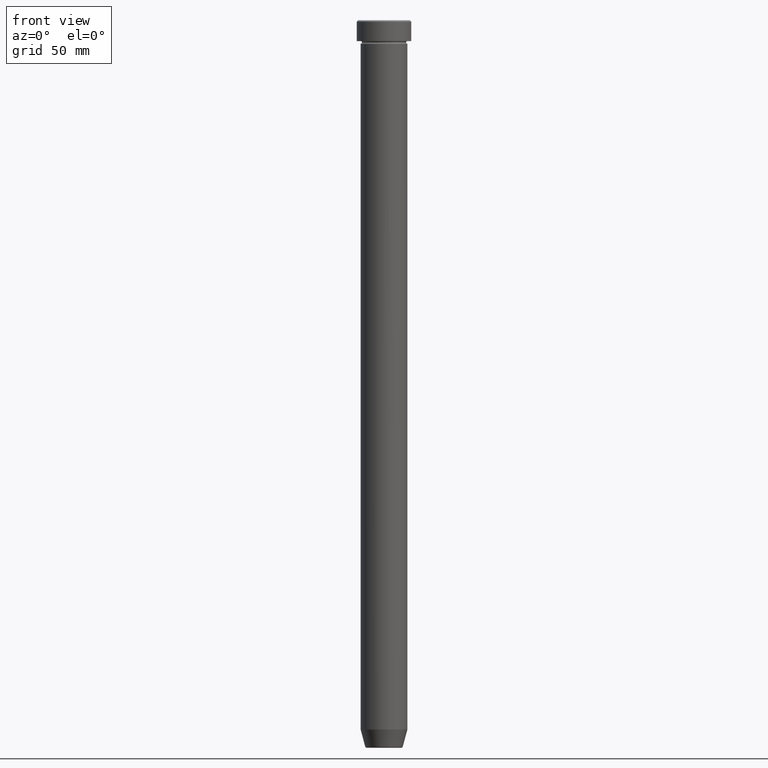
[diagram: clean part render]
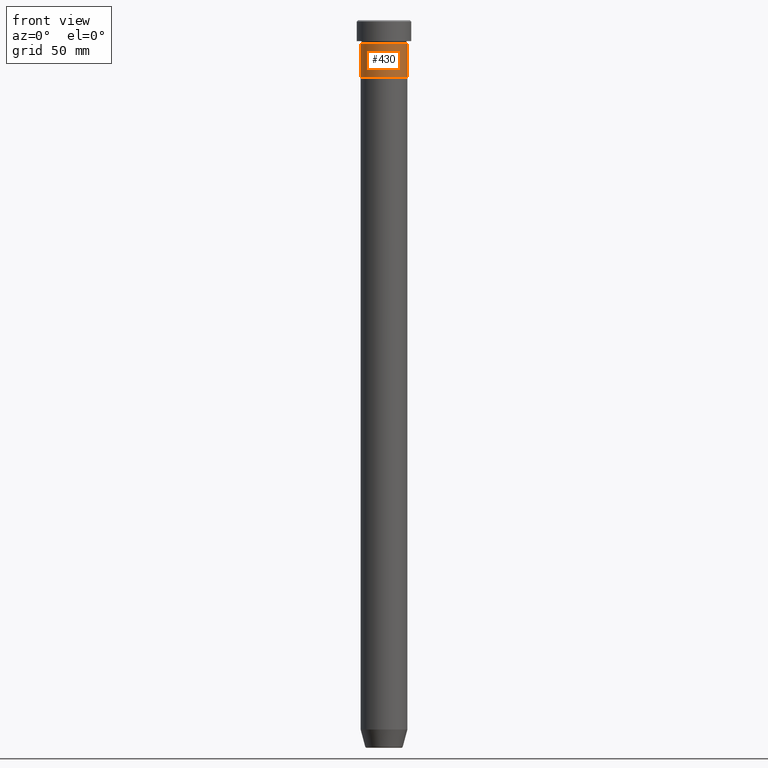
[diagram: same view with one face highlighted and labeled with its STEP entity id]
A machine part, front view. The second image highlights one B-rep face of the part: STEP entity #430.
In plain terms, the highlighted cylindrical surface (edge-blend (fillet) strip) has radius 9 mm, axis along (-0, -0, 1).
Its self-contained STEP definition (entity closure, byte-faithful):
#2 = DIRECTION ( 'NONE',  ( -0.000000000000000000, -0.000000000000000000, 1.000000000000000000 ) ) ;
#7 = CIRCLE ( 'NONE', #60, 9.000000000000000000 ) ;
#20 = CARTESIAN_POINT ( 'NONE',  ( 9.000000000000000000, 0.000000000000000000, -22.00000000000000000 ) ) ;
#59 = CARTESIAN_POINT ( 'NONE',  ( 9.000000000000000000, 0.000000000000000000, 0.000000000000000000 ) ) ;
#60 = AXIS2_PLACEMENT_3D ( 'NONE', #459, #462, #273 ) ;
#118 = VERTEX_POINT ( 'NONE', #20 ) ;
#120 = EDGE_CURVE ( 'NONE', #118, #413, #140, .T. ) ;
#122 = VERTEX_POINT ( 'NONE', #143 ) ;
#132 = AXIS2_PLACEMENT_3D ( 'NONE', #183, #2, #557 ) ;
#140 = LINE ( 'NONE', #59, #404 ) ;
#143 = CARTESIAN_POINT ( 'NONE',  ( -9.000000000000000000, 1.102182119232617714E-15, -22.00000000000000000 ) ) ;
#146 = DIRECTION ( 'NONE',  ( 1.000000000000000000, 0.000000000000000000, 0.000000000000000000 ) ) ;
#164 = ORIENTED_EDGE ( 'NONE', *, *, #561, .F. ) ;
#174 = EDGE_CURVE ( 'NONE', #122, #118, #541, .T. ) ;
#183 = CARTESIAN_POINT ( 'NONE',  ( 0.000000000000000000, 0.000000000000000000, 0.000000000000000000 ) ) ;
#273 = DIRECTION ( 'NONE',  ( 1.000000000000000000, 0.000000000000000000, 0.000000000000000000 ) ) ;
#279 = VERTEX_POINT ( 'NONE', #296 ) ;
#296 = CARTESIAN_POINT ( 'NONE',  ( -9.000000000000000000, 1.102182119232617714E-15, -9.000000000000001776 ) ) ;
#333 = AXIS2_PLACEMENT_3D ( 'NONE', #426, #526, #146 ) ;
#334 = ORIENTED_EDGE ( 'NONE', *, *, #120, .T. ) ;
#355 = DIRECTION ( 'NONE',  ( -0.000000000000000000, -0.000000000000000000, 1.000000000000000000 ) ) ;
#360 = CYLINDRICAL_SURFACE ( 'NONE', #132, 9.000000000000000000 ) ;
#375 = DIRECTION ( 'NONE',  ( -0.000000000000000000, -0.000000000000000000, 1.000000000000000000 ) ) ;
#381 = ORIENTED_EDGE ( 'NONE', *, *, #504, .F. ) ;
#399 = LINE ( 'NONE', #597, #510 ) ;
#404 = VECTOR ( 'NONE', #375, 1000.000000000000000 ) ;
#413 = VERTEX_POINT ( 'NONE', #456 ) ;
#426 = CARTESIAN_POINT ( 'NONE',  ( 0.000000000000000000, 0.000000000000000000, -22.00000000000000000 ) ) ;
#430 = ADVANCED_FACE ( 'NONE', ( #505 ), #360, .T. ) ;
#436 = EDGE_LOOP ( 'NONE', ( #381, #553, #334, #164 ) ) ;
#456 = CARTESIAN_POINT ( 'NONE',  ( 9.000000000000000000, 0.000000000000000000, -9.000000000000001776 ) ) ;
#459 = CARTESIAN_POINT ( 'NONE',  ( 0.000000000000000000, 0.000000000000000000, -9.000000000000001776 ) ) ;
#462 = DIRECTION ( 'NONE',  ( -0.000000000000000000, -0.000000000000000000, 1.000000000000000000 ) ) ;
#504 = EDGE_CURVE ( 'NONE', #122, #279, #399, .T. ) ;
#505 = FACE_OUTER_BOUND ( 'NONE', #436, .T. ) ;
#510 = VECTOR ( 'NONE', #355, 1000.000000000000000 ) ;
#526 = DIRECTION ( 'NONE',  ( -0.000000000000000000, -0.000000000000000000, 1.000000000000000000 ) ) ;
#541 = CIRCLE ( 'NONE', #333, 9.000000000000000000 ) ;
#553 = ORIENTED_EDGE ( 'NONE', *, *, #174, .T. ) ;
#557 = DIRECTION ( 'NONE',  ( 1.000000000000000000, 0.000000000000000000, 0.000000000000000000 ) ) ;
#561 = EDGE_CURVE ( 'NONE', #279, #413, #7, .T. ) ;
#597 = CARTESIAN_POINT ( 'NONE',  ( -9.000000000000000000, 1.102182119232617714E-15, 0.000000000000000000 ) ) ;